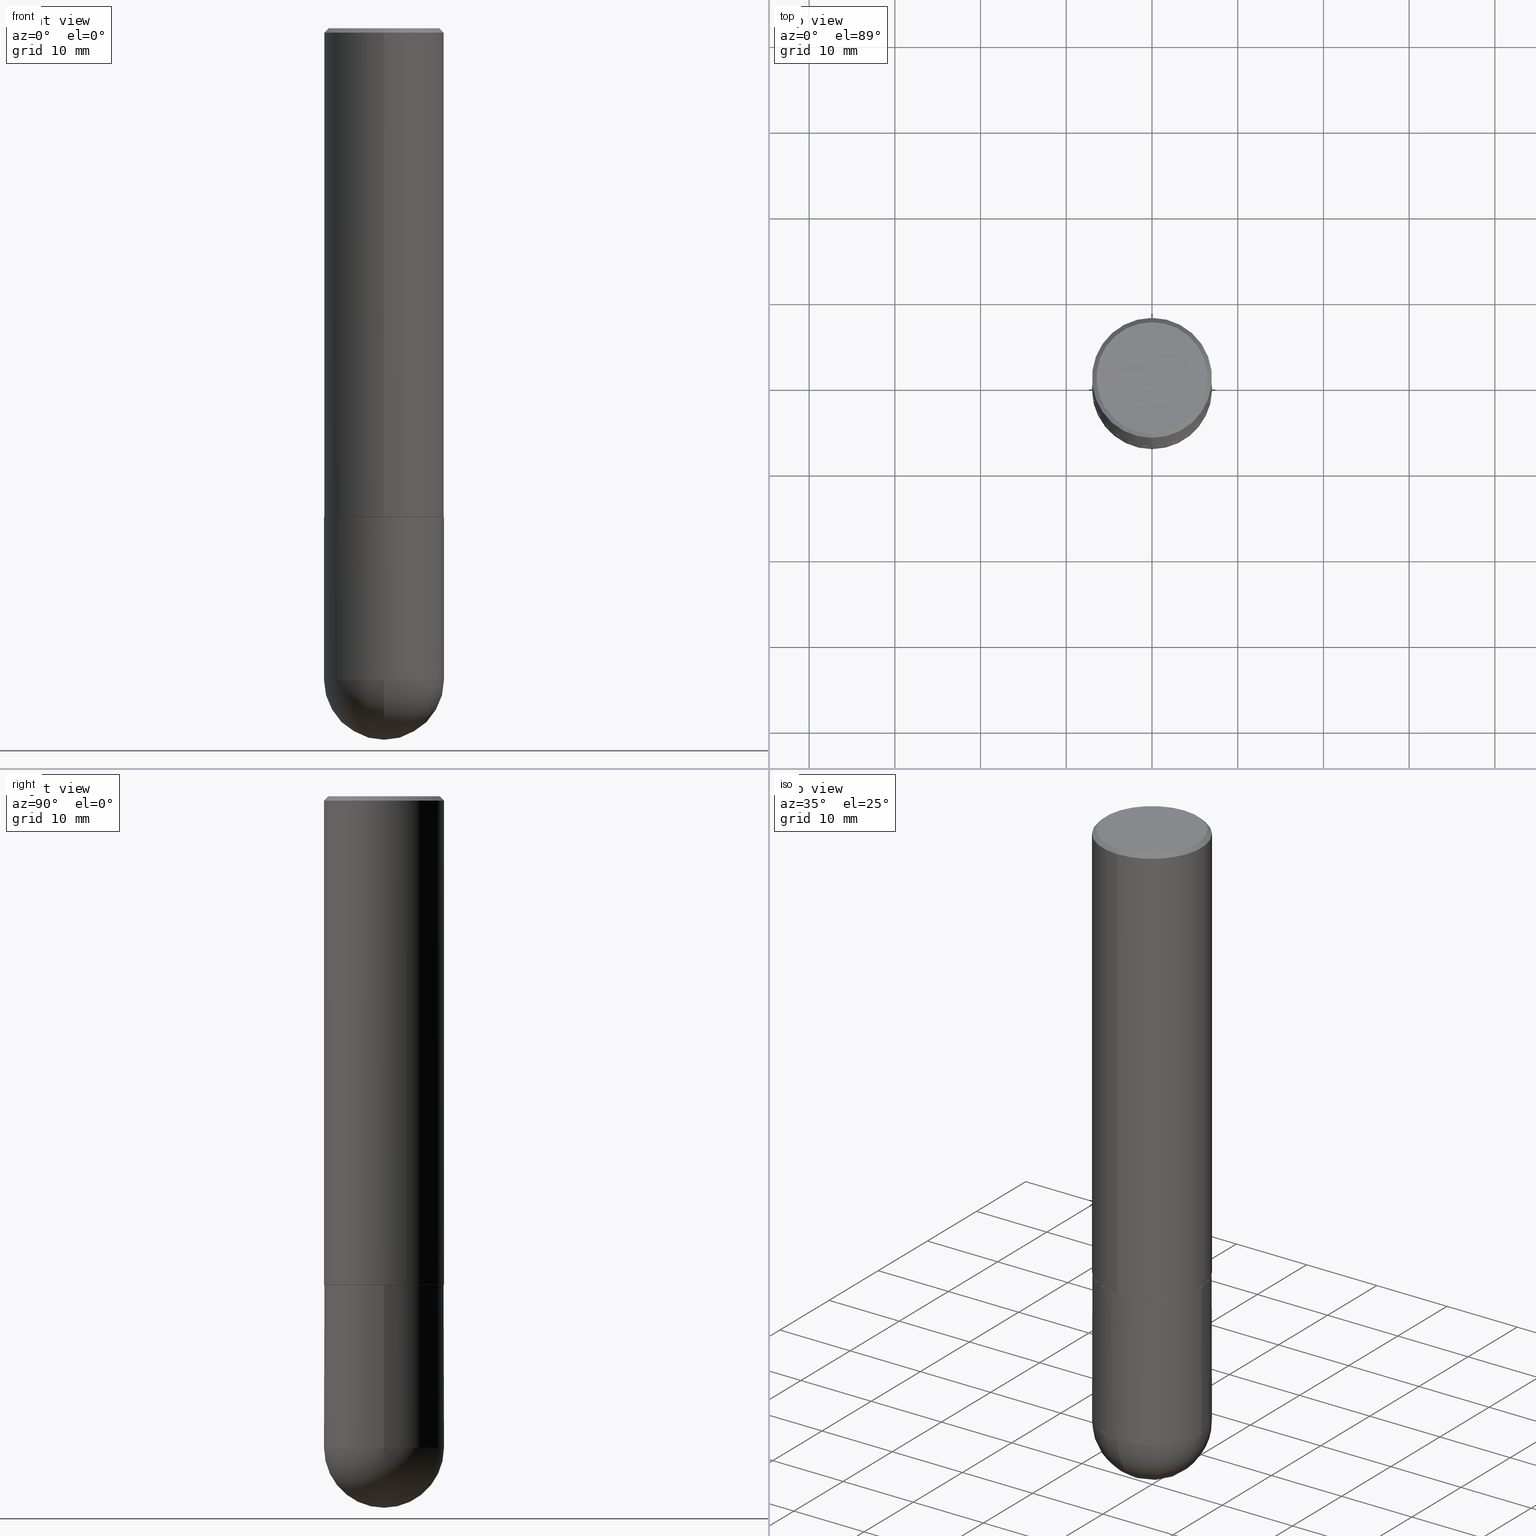
[diagram: canonical four-view strip — front | top / right | iso, engineering-drawing reading convention]
A machine part, canonical four-view strip (front | top / right | iso — engineering-drawing reading convention). The complete STEP part file that produces these views, byte-faithful:
ISO-10303-21;
HEADER;
FILE_DESCRIPTION (( 'STEP AP203' ),
    '1' );
FILE_NAME ('46347.STEP',
    '2024-04-10T11:49:46',
    ( '' ),
    ( '' ),
    'SwSTEP 2.0',
    'SolidWorks 2023',
    '' );
FILE_SCHEMA (( 'CONFIG_CONTROL_DESIGN' ));
ENDSEC;

DATA;
#1 = DIMENSIONAL_EXPONENTS ( 1.000000000000000000, 0.000000000000000000, 0.000000000000000000, 0.000000000000000000, 0.000000000000000000, 0.000000000000000000, 0.000000000000000000 ) ;
#2 = AXIS2_PLACEMENT_3D ( 'NONE', #323, #10, #160 ) ;
#3 = CIRCLE ( 'NONE', #199, 0.2746000000000000107 ) ;
#4 = CALENDAR_DATE ( 2024, 10, 4 ) ;
#5 = LINE ( 'NONE', #6, #239 ) ;
#6 = CARTESIAN_POINT ( 'NONE',  ( 1.924504513970335743E-15, 0.2755999999999999561, -0.02000000000000102737 ) ) ;
#7 = FACE_OUTER_BOUND ( 'NONE', #304, .T. ) ;
#8 = EDGE_CURVE ( 'NONE', #49, #314, #342, .T. ) ;
#9 = DIRECTION ( 'NONE',  ( 6.982962677686265922E-15, 1.000000000000000000, -3.493123410481168498E-15 ) ) ;
#10 = DIRECTION ( 'NONE',  ( -2.444322153688896085E-29, 3.493123410481168498E-15, 1.000000000000000000 ) ) ;
#11 = FACE_OUTER_BOUND ( 'NONE', #186, .T. ) ;
#12 = DIRECTION ( 'NONE',  ( -6.982962677686265922E-15, -1.000000000000000000, 3.500304146453892878E-15 ) ) ;
#13 = VECTOR ( 'NONE', #105, 39.37007874015748143 ) ;
#14 = DIRECTION ( 'NONE',  ( 1.000000000000000000, -6.982962677686265922E-15, 4.883557194083112340E-29 ) ) ;
#15 = DIRECTION ( 'NONE',  ( 5.024295867788662713E-15, 0.7071067811866345032, 0.7071067811864605313 ) ) ;
#16 = DIRECTION ( 'NONE',  ( -2.445468806185136597E-29, 3.491481338843145583E-15, 1.000000000000000000 ) ) ;
#17 = PERSON ( 'UNSPECIFIED', 'UNSPECIFIED', 'UNSPECIFIED', ('UNSPECIFIED'), ('UNSPECIFIED'), ('UNSPECIFIED') ) ;
#18 = ADVANCED_FACE ( 'NONE', ( #317 ), #69, .F. ) ;
#19 = ORGANIZATION ( 'UNSPECIFIED', 'UNSPECIFIED', '' ) ;
#20 = ORIENTED_EDGE ( 'NONE', *, *, #136, .T. ) ;
#21 = APPROVAL ( #309, 'UNSPECIFIED' ) ;
#22 = CARTESIAN_POINT ( 'NONE',  ( 7.317087214986547114E-29, -1.044686131395257581E-14, -2.992100000000000204 ) ) ;
#23 = EDGE_LOOP ( 'NONE', ( #20, #93, #409, #144, #202 ) ) ;
#24 = ORIENTED_EDGE ( 'NONE', *, *, #44, .T. ) ;
#25 = DIRECTION ( 'NONE',  ( 1.000000000000000000, -6.982962677686264344E-15, 0.000000000000000000 ) ) ;
#26 = ORIENTED_EDGE ( 'NONE', *, *, #400, .T. ) ;
#27 = LOCAL_TIME ( 7, 49, 46.00000000000000000, #156 ) ;
#28 = ORIENTED_EDGE ( 'NONE', *, *, #8, .T. ) ;
#29 = COORDINATED_UNIVERSAL_TIME_OFFSET ( 5, 0, .BEHIND. ) ;
#30 = CARTESIAN_POINT ( 'NONE',  ( -0.2756000000000000116, -7.182791513470402485E-15, -2.244100000000000428 ) ) ;
#31 = EDGE_CURVE ( 'NONE', #187, #170, #89, .T. ) ;
#32 = APPROVAL_STATUS ( 'not_yet_approved' ) ;
#33 = CARTESIAN_POINT ( 'NONE',  ( -1.822148268208117593E-15, -0.2555999999999998273, 1.093882144264383997E-15 ) ) ;
#34 = FACE_OUTER_BOUND ( 'NONE', #52, .T. ) ;
#35 = ORIENTED_EDGE ( 'NONE', *, *, #64, .T. ) ;
#36 = CARTESIAN_POINT ( 'NONE',  ( 6.985967437072660867E-29, -1.092104368209262610E-14, -2.992100000000000204 ) ) ;
#37 = DIRECTION ( 'NONE',  ( -2.444322153688896645E-29, 3.493123410481168498E-15, 1.000000000000000000 ) ) ;
#38 = CLOSED_SHELL ( 'NONE', ( #388, #235, #163, #133, #286 ) ) ;
#39 = CARTESIAN_POINT ( 'NONE',  ( 5.485303345093252884E-29, -7.838918245460792099E-15, -2.244100000000000428 ) ) ;
#40 = CARTESIAN_POINT ( 'NONE',  ( 6.985967437072660867E-29, -1.092104368209262610E-14, -2.992100000000000204 ) ) ;
#41 = DIRECTION ( 'NONE',  ( 1.000000000000000000, -6.982962677686267499E-15, 4.876176775795935793E-29 ) ) ;
#42 = AXIS2_PLACEMENT_3D ( 'NONE', #36, #129, #377 ) ;
#43 = LINE ( 'NONE', #169, #274 ) ;
#44 = EDGE_CURVE ( 'NONE', #314, #149, #5, .T. ) ;
#45 = CARTESIAN_POINT ( 'NONE',  ( 7.671722831522178326E-29, -1.186642030618554829E-14, -3.267700000000000049 ) ) ;
#46 = ORIENTED_EDGE ( 'NONE', *, *, #361, .F. ) ;
#47 = DIRECTION ( 'NONE',  ( 1.000000000000000000, 0.000000000000000000, 0.000000000000000000 ) ) ;
#48 = CIRCLE ( 'NONE', #262, 0.2756000000000000671 ) ;
#49 = VERTEX_POINT ( 'NONE', #33 ) ;
#50 = APPROVAL ( #32, 'UNSPECIFIED' ) ;
#51 = CARTESIAN_POINT ( 'NONE',  ( -1.917521551292593719E-15, -0.2746000000000078378, -2.244099999999999095 ) ) ;
#52 = EDGE_LOOP ( 'NONE', ( #162, #277, #102, #183 ) ) ;
#53 = APPLICATION_PROTOCOL_DEFINITION ( 'international standard', 'config_control_design', 1994, #302 ) ;
#54 = COORDINATED_UNIVERSAL_TIME_OFFSET ( 5, 0, .BEHIND. ) ;
#55 = AXIS2_PLACEMENT_3D ( 'NONE', #345, #292, #126 ) ;
#56 = AXIS2_PLACEMENT_3D ( 'NONE', #230, #195, #360 ) ;
#57 = ORIENTED_EDGE ( 'NONE', *, *, #265, .T. ) ;
#58 = DATE_AND_TIME ( #316, #205 ) ;
#59 = DIRECTION ( 'NONE',  ( -2.444322153688896365E-29, 3.493123410481168498E-15, 1.000000000000000000 ) ) ;
#60 = DIRECTION ( 'NONE',  ( -6.982962677686265922E-15, -1.000000000000000000, 3.493123410481168498E-15 ) ) ;
#61 = EDGE_CURVE ( 'NONE', #319, #368, #157, .T. ) ;
#62 = PERSON_AND_ORGANIZATION ( #17, #19 ) ;
#63 = ORIENTED_EDGE ( 'NONE', *, *, #172, .T. ) ;
#64 = EDGE_CURVE ( 'NONE', #407, #368, #299, .T. ) ;
#65 = CARTESIAN_POINT ( 'NONE',  ( 1.958255779754836984E-15, 0.2756000000000001782, -9.627048119286106573E-16 ) ) ;
#66 = AXIS2_PLACEMENT_3D ( 'NONE', #39, #264, #261 ) ;
#67 = PRODUCT_DEFINITION_SHAPE ( 'NONE', 'NONE',  #188 ) ;
#68 = DIRECTION ( 'NONE',  ( -6.982962677686265922E-15, -1.000000000000000000, 3.964946289788476952E-15 ) ) ;
#69 = PLANE ( 'NONE',  #2 ) ;
#70 = DIRECTION ( 'NONE',  ( -6.982962677686265133E-15, -1.000000000000000000, 3.979385278462145862E-15 ) ) ;
#71 = LINE ( 'NONE', #226, #118 ) ;
#72 = CIRCLE ( 'NONE', #303, 0.2756000000000002892 ) ;
#73 = CONICAL_SURFACE ( 'NONE', #365, 0.2756000000000000116, 0.7853981633974466137 ) ;
#74 = SPHERICAL_SURFACE ( 'NONE', #168, 0.2756000000000003447 ) ;
#75 = DIRECTION ( 'NONE',  ( 2.444322153688896085E-29, -3.493123410481168498E-15, -1.000000000000000000 ) ) ;
#76 = DIRECTION ( 'NONE',  ( -2.445468806185136597E-29, 3.491481338843145583E-15, 1.000000000000000000 ) ) ;
#77 = APPROVAL_DATE_TIME ( #298, #50 ) ;
#78 = VECTOR ( 'NONE', #260, 39.37007874015748143 ) ;
#79 = AXIS2_PLACEMENT_3D ( 'NONE', #242, #404, #333 ) ;
#80 = FACE_OUTER_BOUND ( 'NONE', #373, .T. ) ;
#81 = EDGE_CURVE ( 'NONE', #187, #149, #132, .T. ) ;
#82 = CARTESIAN_POINT ( 'NONE',  ( 5.487876547960065873E-29, -7.835233272497903917E-15, -2.244100000000000428 ) ) ;
#83 = MANIFOLD_SOLID_BREP ( 'Body-Move/Copy2[2]', #193 ) ;
#84 = ORIENTED_EDGE ( 'NONE', *, *, #340, .F. ) ;
#85 =( NAMED_UNIT ( * ) PLANE_ANGLE_UNIT ( ) SI_UNIT ( $, .RADIAN. ) );
#86 = CC_DESIGN_PERSON_AND_ORGANIZATION_ASSIGNMENT ( #179, #151, ( #290 ) ) ;
#87 = ORIENTED_EDGE ( 'NONE', *, *, #246, .F. ) ;
#88 = PERSON_AND_ORGANIZATION ( #17, #19 ) ;
#89 = CIRCLE ( 'NONE', #167, 0.2756000000000002892 ) ;
#90 = CC_DESIGN_APPROVAL ( #220, ( #290 ) ) ;
#91 = VERTEX_POINT ( 'NONE', #30 ) ;
#92 = CARTESIAN_POINT ( 'NONE',  ( 0.000000000000000000, 0.000000000000000000, 0.000000000000000000 ) ) ;
#93 = ORIENTED_EDGE ( 'NONE', *, *, #150, .T. ) ;
#94 = ORIENTED_EDGE ( 'NONE', *, *, #122, .T. ) ;
#95 = APPROVAL_DATE_TIME ( #376, #21 ) ;
#96 = CARTESIAN_POINT ( 'NONE',  ( -1.924504513970282100E-15, -0.2756000000000081163, -2.243099999999999206 ) ) ;
#97 = EDGE_CURVE ( 'NONE', #314, #49, #330, .T. ) ;
#98 = CIRCLE ( 'NONE', #379, 0.2756000000000000116 ) ;
#99 = CARTESIAN_POINT ( 'NONE',  ( -4.914060382463135055E-45, 7.022568337235947334E-31, 2.010398005453980136E-16 ) ) ;
#100 = CALENDAR_DATE ( 2024, 10, 4 ) ;
#101 = DIRECTION ( 'NONE',  ( 2.438088387897960049E-29, -3.491481338843145188E-15, -1.000000000000000000 ) ) ;
#102 = ORIENTED_EDGE ( 'NONE', *, *, #246, .T. ) ;
#103 = DIRECTION ( 'NONE',  ( -2.444322153688896365E-29, 3.493123410481168498E-15, 1.000000000000000000 ) ) ;
#104 = CARTESIAN_POINT ( 'NONE',  ( 6.985967437072660867E-29, -1.092104368209262610E-14, -2.992100000000000204 ) ) ;
#105 = DIRECTION ( 'NONE',  ( -2.444322153688896645E-29, 3.493123410481168498E-15, 1.000000000000000000 ) ) ;
#106 = DIRECTION ( 'NONE',  ( -2.445468806185136597E-29, 3.491481338843145583E-15, 1.000000000000000000 ) ) ;
#107 = CARTESIAN_POINT ( 'NONE',  ( 1.954703066076090911E-15, 0.2745999999999921282, -2.244100000000001316 ) ) ;
#108 = ADVANCED_FACE ( 'NONE', ( #7 ), #210, .T. ) ;
#109 =( GEOMETRIC_REPRESENTATION_CONTEXT ( 3 ) GLOBAL_UNCERTAINTY_ASSIGNED_CONTEXT ( ( #138 ) ) GLOBAL_UNIT_ASSIGNED_CONTEXT ( ( #370, #85, #177 ) ) REPRESENTATION_CONTEXT ( 'NONE', 'WORKASPACE' ) );
#110 = CARTESIAN_POINT ( 'NONE',  ( 6.985967437072660867E-29, -1.092104368209262610E-14, -2.992100000000000204 ) ) ;
#111 = DIRECTION ( 'NONE',  ( -2.445468806185136597E-29, 3.491481338843145583E-15, 1.000000000000000000 ) ) ;
#112 = DIRECTION ( 'NONE',  ( 6.982962677686265922E-15, 1.000000000000000000, -3.964946289788475374E-15 ) ) ;
#113 = AXIS2_PLACEMENT_3D ( 'NONE', #297, #296, #12 ) ;
#114 = DIRECTION ( 'NONE',  ( -2.444322153688896365E-29, 3.493123410481168498E-15, 1.000000000000000000 ) ) ;
#115 = ADVANCED_FACE ( 'NONE', ( #34 ), #387, .T. ) ;
#116 = ORIENTED_EDGE ( 'NONE', *, *, #97, .T. ) ;
#117 = VERTEX_POINT ( 'NONE', #224 ) ;
#118 = VECTOR ( 'NONE', #354, 39.37007874015748143 ) ;
#119 = AXIS2_PLACEMENT_3D ( 'NONE', #110, #14, #137 ) ;
#120 = APPROVAL_ROLE ( '' ) ;
#121 = ORIENTED_EDGE ( 'NONE', *, *, #326, .F. ) ;
#122 = EDGE_CURVE ( 'NONE', #170, #187, #72, .T. ) ;
#123 = CALENDAR_DATE ( 2024, 10, 4 ) ;
#124 = EDGE_LOOP ( 'NONE', ( #273, #26 ) ) ;
#125 = PERSON_AND_ORGANIZATION_ROLE ( 'classification_officer' ) ;
#126 = DIRECTION ( 'NONE',  ( 6.982962677686265922E-15, 1.000000000000000000, -3.500304146453892878E-15 ) ) ;
#127 = EDGE_LOOP ( 'NONE', ( #209, #284, #384, #63, #178 ) ) ;
#128 = DIRECTION ( 'NONE',  ( -6.982962677686265922E-15, -1.000000000000000000, 3.493123410481168498E-15 ) ) ;
#129 = DIRECTION ( 'NONE',  ( -1.000000000000000000, 6.982962677686265922E-15, -4.883557194083112340E-29 ) ) ;
#130 = EDGE_LOOP ( 'NONE', ( #307, #406 ) ) ;
#131 = DIRECTION ( 'NONE',  ( 6.982962677686265922E-15, 1.000000000000000000, -3.500304146453892878E-15 ) ) ;
#132 = LINE ( 'NONE', #65, #171 ) ;
#133 = ADVANCED_FACE ( 'NONE', ( #350 ), #251, .F. ) ;
#134 = FACE_OUTER_BOUND ( 'NONE', #127, .T. ) ;
#135 = APPLICATION_CONTEXT ( 'configuration controlled 3d designs of mechanical parts and assemblies' ) ;
#136 = EDGE_CURVE ( 'NONE', #244, #319, #48, .T. ) ;
#137 = DIRECTION ( 'NONE',  ( 6.982962677686265922E-15, 1.000000000000000000, 0.000000000000000000 ) ) ;
#138 = UNCERTAINTY_MEASURE_WITH_UNIT (LENGTH_MEASURE( 1.000000000000000082E-05 ), #370, 'distance_accuracy_value', 'NONE');
#139 = CARTESIAN_POINT ( 'NONE',  ( -1.924504513970336137E-15, -0.2756000000000001782, 9.627048119286106573E-16 ) ) ;
#140 = DIRECTION ( 'NONE',  ( -4.937700262165138110E-15, -0.7071067811866296182, 0.7071067811864654162 ) ) ;
#141 = APPROVAL_PERSON_ORGANIZATION ( #88, #21, #120 ) ;
#142 = ORIENTED_EDGE ( 'NONE', *, *, #81, .T. ) ;
#143 = LINE ( 'NONE', #51, #331 ) ;
#144 = ORIENTED_EDGE ( 'NONE', *, *, #172, .F. ) ;
#145 = FACE_OUTER_BOUND ( 'NONE', #23, .T. ) ;
#146 = ORIENTED_EDGE ( 'NONE', *, *, #64, .F. ) ;
#147 = AXIS2_PLACEMENT_3D ( 'NONE', #381, #101, #217 ) ;
#148 = SECURITY_CLASSIFICATION ( '', '', #279 ) ;
#149 = VERTEX_POINT ( 'NONE', #259 ) ;
#150 = EDGE_CURVE ( 'NONE', #319, #91, #71, .T. ) ;
#151 = PERSON_AND_ORGANIZATION_ROLE ( 'design_supplier' ) ;
#152 = ORIENTED_EDGE ( 'NONE', *, *, #136, .F. ) ;
#153 = DATE_AND_TIME ( #123, #221 ) ;
#154 = CARTESIAN_POINT ( 'NONE',  ( 5.482859022939564646E-29, -7.835425122050310720E-15, -2.243100000000000094 ) ) ;
#155 = ADVANCED_FACE ( 'NONE', ( #243 ), #185, .T. ) ;
#156 = COORDINATED_UNIVERSAL_TIME_OFFSET ( 5, 0, .BEHIND. ) ;
#157 = CIRCLE ( 'NONE', #233, 0.2756000000000000671 ) ;
#158 = DIRECTION ( 'NONE',  ( -6.982962677686265922E-15, -1.000000000000000000, 3.493123410481168498E-15 ) ) ;
#159 = CARTESIAN_POINT ( 'NONE',  ( 0.000000000000000000, 0.000000000000000000, 0.000000000000000000 ) ) ;
#160 = DIRECTION ( 'NONE',  ( -6.982962677686265922E-15, -1.000000000000000000, 3.493123410481168498E-15 ) ) ;
#161 = DIRECTION ( 'NONE',  ( -2.444322153688896365E-29, 3.493123410481168498E-15, 1.000000000000000000 ) ) ;
#162 = ORIENTED_EDGE ( 'NONE', *, *, #81, .F. ) ;
#163 = ADVANCED_FACE ( 'NONE', ( #287 ), #218, .T. ) ;
#164 = CARTESIAN_POINT ( 'NONE',  ( 0.2756000000000000116, -9.759737786468238871E-15, -2.244100000000000428 ) ) ;
#165 = CARTESIAN_POINT ( 'NONE',  ( 1.784845260416608358E-15, 0.2555999999999998273, -7.923224434462870510E-16 ) ) ;
#166 = CARTESIAN_POINT ( 'NONE',  ( 1.854674887193472050E-15, 0.2555999999999998273, -6.918025431735880688E-16 ) ) ;
#167 = AXIS2_PLACEMENT_3D ( 'NONE', #285, #215, #68 ) ;
#168 = AXIS2_PLACEMENT_3D ( 'NONE', #40, #389, #112 ) ;
#169 = CARTESIAN_POINT ( 'NONE',  ( -1.890753248185833713E-15, -0.2756000000000000671, -0.01999999999999909836 ) ) ;
#170 = VERTEX_POINT ( 'NONE', #96 ) ;
#171 = VECTOR ( 'NONE', #37, 39.37007874015748143 ) ;
#172 = EDGE_CURVE ( 'NONE', #288, #275, #214, .T. ) ;
#173 = AXIS2_PLACEMENT_3D ( 'NONE', #22, #16, #25 ) ;
#174 = APPLICATION_PROTOCOL_DEFINITION ( 'international standard', 'config_control_design', 1994, #135 ) ;
#175 = CARTESIAN_POINT ( 'NONE',  ( 5.485303345093252884E-29, -7.838918245460792099E-15, -2.244100000000000428 ) ) ;
#176 = ORIENTED_EDGE ( 'NONE', *, *, #191, .F. ) ;
#177 =( NAMED_UNIT ( * ) SI_UNIT ( $, .STERADIAN. ) SOLID_ANGLE_UNIT ( ) );
#178 = ORIENTED_EDGE ( 'NONE', *, *, #400, .F. ) ;
#179 = PERSON_AND_ORGANIZATION ( #17, #19 ) ;
#180 = AXIS2_PLACEMENT_3D ( 'NONE', #396, #161, #293 ) ;
#181 = EDGE_LOOP ( 'NONE', ( #94, #142, #121, #87 ) ) ;
#182 = PERSON_AND_ORGANIZATION ( #17, #19 ) ;
#183 = ORIENTED_EDGE ( 'NONE', *, *, #278, .F. ) ;
#184 = APPROVAL_DATE_TIME ( #153, #220 ) ;
#185 = CYLINDRICAL_SURFACE ( 'NONE', #254, 0.2756000000000001782 ) ;
#186 = EDGE_LOOP ( 'NONE', ( #84, #35, #371, #152 ) ) ;
#187 = VERTEX_POINT ( 'NONE', #192 ) ;
#188 = PRODUCT_DEFINITION ( 'UNKNOWN', '', #290, #294 ) ;
#189 = DIRECTION ( 'NONE',  ( -2.444322153688896365E-29, 3.493123410481168498E-15, 1.000000000000000000 ) ) ;
#190 = DIRECTION ( 'NONE',  ( -2.445468806185136597E-29, 3.491481338843145583E-15, 1.000000000000000000 ) ) ;
#191 = EDGE_CURVE ( 'NONE', #308, #187, #363, .T. ) ;
#192 = CARTESIAN_POINT ( 'NONE',  ( 1.958255779754864988E-15, 0.2755999999999924621, -2.243100000000001426 ) ) ;
#193 = CLOSED_SHELL ( 'NONE', ( #250, #155, #223, #108, #115, #369, #18, #213 ) ) ;
#194 = AXIS2_PLACEMENT_3D ( 'NONE', #92, #268, #47 ) ;
#195 = DIRECTION ( 'NONE',  ( -2.444322153688896365E-29, 3.493123410481168498E-15, 1.000000000000000000 ) ) ;
#196 = CARTESIAN_POINT ( 'NONE',  ( 7.317087214986547114E-29, -1.044686131395257581E-14, -2.992100000000000204 ) ) ;
#197 = DIRECTION ( 'NONE',  ( 1.000000000000000000, -6.982962677686269866E-15, 0.000000000000000000 ) ) ;
#198 = AXIS2_PLACEMENT_3D ( 'NONE', #104, #253, #412 ) ;
#199 = AXIS2_PLACEMENT_3D ( 'NONE', #353, #395, #70 ) ;
#200 = LINE ( 'NONE', #139, #13 ) ;
#201 = ORIENTED_EDGE ( 'NONE', *, *, #326, .T. ) ;
#202 = ORIENTED_EDGE ( 'NONE', *, *, #372, .T. ) ;
#203 = CC_DESIGN_PERSON_AND_ORGANIZATION_ASSIGNMENT ( #411, #125, ( #148 ) ) ;
#204 = AXIS2_PLACEMENT_3D ( 'NONE', #99, #324, #158 ) ;
#205 = LOCAL_TIME ( 7, 49, 46.00000000000000000, #344 ) ;
#206 = FACE_OUTER_BOUND ( 'NONE', #341, .T. ) ;
#207 = ORIENTED_EDGE ( 'NONE', *, *, #374, .F. ) ;
#208 = ORIENTED_EDGE ( 'NONE', *, *, #191, .T. ) ;
#209 = ORIENTED_EDGE ( 'NONE', *, *, #150, .F. ) ;
#210 = CONICAL_SURFACE ( 'NONE', #55, 0.2756000000000000116, 0.7853981633974466137 ) ;
#211 = PERSON_AND_ORGANIZATION_ROLE ( 'creator' ) ;
#212 = LOCAL_TIME ( 7, 49, 46.00000000000000000, #54 ) ;
#213 = ADVANCED_FACE ( 'NONE', ( #332 ), #301, .F. ) ;
#214 = LINE ( 'NONE', #382, #78 ) ;
#215 = DIRECTION ( 'NONE',  ( -2.444322153688896365E-29, 3.493123410481168498E-15, 1.000000000000000000 ) ) ;
#216 = DATE_TIME_ROLE ( 'classification_date' ) ;
#217 = DIRECTION ( 'NONE',  ( -1.000000000000000000, 6.982962677686265922E-15, -4.876176775795935793E-29 ) ) ;
#218 = SPHERICAL_SURFACE ( 'NONE', #42, 0.2756000000000003447 ) ;
#219 = ORIENTED_EDGE ( 'NONE', *, *, #295, .F. ) ;
#220 = APPROVAL ( #346, 'UNSPECIFIED' ) ;
#221 = LOCAL_TIME ( 7, 49, 46.00000000000000000, #29 ) ;
#222 = DIRECTION ( 'NONE',  ( -2.444322153688896365E-29, 3.493123410481168498E-15, 1.000000000000000000 ) ) ;
#223 = ADVANCED_FACE ( 'NONE', ( #80 ), #73, .T. ) ;
#224 = CARTESIAN_POINT ( 'NONE',  ( -1.917521551292593719E-15, -0.2746000000000078378, -2.244099999999999095 ) ) ;
#225 = FACE_OUTER_BOUND ( 'NONE', #401, .T. ) ;
#226 = CARTESIAN_POINT ( 'NONE',  ( -0.2756000000000000671, 1.958255779754836589E-15, -1.355658510874252287E-29 ) ) ;
#227 = DIRECTION ( 'NONE',  ( 2.444322153688896365E-29, -3.493123410481168498E-15, -1.000000000000000000 ) ) ;
#228 = CIRCLE ( 'NONE', #366, 0.2756000000000000116 ) ;
#229 = CARTESIAN_POINT ( 'NONE',  ( 4.888644307377808495E-31, -6.986246820962358886E-17, -0.02000000000000006287 ) ) ;
#230 = CARTESIAN_POINT ( 'NONE',  ( 5.485303345093252884E-29, -7.838918245460792099E-15, -2.244100000000000428 ) ) ;
#231 = CALENDAR_DATE ( 2024, 10, 4 ) ;
#232 = CARTESIAN_POINT ( 'NONE',  ( 0.000000000000000000, 0.000000000000000000, 0.000000000000000000 ) ) ;
#233 = AXIS2_PLACEMENT_3D ( 'NONE', #252, #190, #348 ) ;
#234 = AXIS2_PLACEMENT_3D ( 'NONE', #196, #111, #291 ) ;
#235 = ADVANCED_FACE ( 'NONE', ( #11 ), #74, .T. ) ;
#236 =( LENGTH_UNIT ( ) NAMED_UNIT ( * ) SI_UNIT ( $, .METRE. ) );
#237 = ORIENTED_EDGE ( 'NONE', *, *, #44, .F. ) ;
#238 = DIRECTION ( 'NONE',  ( -6.982962677686265133E-15, -1.000000000000000000, 3.979385278462145862E-15 ) ) ;
#239 = VECTOR ( 'NONE', #256, 39.37007874015748854 ) ;
#240 = AXIS2_PLACEMENT_3D ( 'NONE', #165, #75, #9 ) ;
#241 = ORIENTED_EDGE ( 'NONE', *, *, #8, .F. ) ;
#242 = CARTESIAN_POINT ( 'NONE',  ( 0.000000000000000000, 0.000000000000000000, 0.000000000000000000 ) ) ;
#243 = FACE_OUTER_BOUND ( 'NONE', #181, .T. ) ;
#244 = VERTEX_POINT ( 'NONE', #358 ) ;
#245 = DATE_AND_TIME ( #100, #27 ) ;
#246 = EDGE_CURVE ( 'NONE', #170, #338, #200, .T. ) ;
#247 = EDGE_LOOP ( 'NONE', ( #116, #28 ) ) ;
#248 = DATE_TIME_ROLE ( 'creation_date' ) ;
#249 = APPROVAL_PERSON_ORGANIZATION ( #182, #220, #318 ) ;
#250 = ADVANCED_FACE ( 'NONE', ( #225 ), #337, .T. ) ;
#251 = PLANE ( 'NONE',  #147 ) ;
#252 = CARTESIAN_POINT ( 'NONE',  ( 7.317087214986547114E-29, -1.044686131395257581E-14, -2.992100000000000204 ) ) ;
#253 = DIRECTION ( 'NONE',  ( -1.000000000000000000, 7.105427357601001070E-15, -4.926315508542082329E-29 ) ) ;
#254 = AXIS2_PLACEMENT_3D ( 'NONE', #280, #59, #386 ) ;
#255 = APPROVAL_PERSON_ORGANIZATION ( #62, #50, #313 ) ;
#256 = DIRECTION ( 'NONE',  ( 4.937700262164538576E-15, 0.7071067811865437980, -0.7071067811865511255 ) ) ;
#257 = PRODUCT ( '46347', '46347', '', ( #306 ) ) ;
#258 = CARTESIAN_POINT ( 'NONE',  ( 1.951150352397289618E-15, 0.2745999999999921282, -2.244100000000001316 ) ) ;
#259 = CARTESIAN_POINT ( 'NONE',  ( 1.924504513970335743E-15, 0.2755999999999999561, -0.02000000000000102737 ) ) ;
#260 = DIRECTION ( 'NONE',  ( -2.445468806185136877E-29, 3.491481338843145188E-15, 1.000000000000000000 ) ) ;
#261 = DIRECTION ( 'NONE',  ( -6.982962677686265133E-15, -1.000000000000000000, 3.979385278462145862E-15 ) ) ;
#262 = AXIS2_PLACEMENT_3D ( 'NONE', #347, #106, #390 ) ;
#263 = CARTESIAN_POINT ( 'NONE',  ( 5.487876547960065873E-29, -7.835233272497903917E-15, -2.244100000000000428 ) ) ;
#264 = DIRECTION ( 'NONE',  ( -2.444322153688896365E-29, 3.493123410481168498E-15, 1.000000000000000000 ) ) ;
#265 = EDGE_CURVE ( 'NONE', #117, #308, #3, .T. ) ;
#266 = CARTESIAN_POINT ( 'NONE',  ( -1.958255779754765592E-15, -0.2756000000000108918, -2.992099999999998872 ) ) ;
#267 = CIRCLE ( 'NONE', #56, 0.2746000000000000107 ) ;
#268 = DIRECTION ( 'NONE',  ( 0.000000000000000000, 0.000000000000000000, 1.000000000000000000 ) ) ;
#269 = ORIENTED_EDGE ( 'NONE', *, *, #278, .T. ) ;
#270 = PERSON_AND_ORGANIZATION ( #17, #19 ) ;
#271 = ORIENTED_EDGE ( 'NONE', *, *, #372, .F. ) ;
#272 = CYLINDRICAL_SURFACE ( 'NONE', #79, 0.2756000000000000671 ) ;
#273 = ORIENTED_EDGE ( 'NONE', *, *, #355, .T. ) ;
#274 = VECTOR ( 'NONE', #367, 39.37007874015748854 ) ;
#275 = VERTEX_POINT ( 'NONE', #164 ) ;
#276 = COORDINATED_UNIVERSAL_TIME_OFFSET ( 5, 0, .BEHIND. ) ;
#277 = ORIENTED_EDGE ( 'NONE', *, *, #31, .T. ) ;
#278 = EDGE_CURVE ( 'NONE', #149, #338, #282, .T. ) ;
#279 = SECURITY_CLASSIFICATION_LEVEL ( 'unclassified' ) ;
#280 = CARTESIAN_POINT ( 'NONE',  ( 0.000000000000000000, 0.000000000000000000, 0.000000000000000000 ) ) ;
#281 = DIRECTION ( 'NONE',  ( -6.982962677686265922E-15, -1.000000000000000000, 3.964946289788476952E-15 ) ) ;
#282 = CIRCLE ( 'NONE', #180, 0.2756000000000000116 ) ;
#283 = CC_DESIGN_DATE_AND_TIME_ASSIGNMENT ( #245, #216, ( #148 ) ) ;
#284 = ORIENTED_EDGE ( 'NONE', *, *, #61, .T. ) ;
#285 = CARTESIAN_POINT ( 'NONE',  ( 5.482859022939564646E-29, -7.835425122050310720E-15, -2.243100000000000094 ) ) ;
#286 = ADVANCED_FACE ( 'NONE', ( #134 ), #329, .T. ) ;
#287 = FACE_OUTER_BOUND ( 'NONE', #375, .T. ) ;
#288 = VERTEX_POINT ( 'NONE', #391 ) ;
#289 = AXIS2_PLACEMENT_3D ( 'NONE', #159, #103, #60 ) ;
#290 = PRODUCT_DEFINITION_FORMATION_WITH_SPECIFIED_SOURCE ( 'ANY', '', #257, .NOT_KNOWN. ) ;
#291 = DIRECTION ( 'NONE',  ( 1.000000000000000000, -6.982962677686264344E-15, 0.000000000000000000 ) ) ;
#292 = DIRECTION ( 'NONE',  ( 2.444322153688896365E-29, -3.493123410481168498E-15, -1.000000000000000000 ) ) ;
#293 = DIRECTION ( 'NONE',  ( -6.982962677686265922E-15, -1.000000000000000000, 3.500304146453892878E-15 ) ) ;
#294 = DESIGN_CONTEXT ( 'detailed design', #302, 'design' ) ;
#295 = EDGE_CURVE ( 'NONE', #368, #288, #357, .T. ) ;
#296 = DIRECTION ( 'NONE',  ( -2.444322153688896365E-29, 3.493123410481168498E-15, 1.000000000000000000 ) ) ;
#297 = CARTESIAN_POINT ( 'NONE',  ( 4.888644307377808495E-31, -6.986246820962358886E-17, -0.02000000000000006287 ) ) ;
#298 = DATE_AND_TIME ( #231, #325 ) ;
#299 = CIRCLE ( 'NONE', #198, 0.2756000000000003447 ) ;
#300 = AXIS2_PLACEMENT_3D ( 'NONE', #232, #362, #41 ) ;
#301 = PLANE ( 'NONE',  #240 ) ;
#302 = APPLICATION_CONTEXT ( 'configuration controlled 3d designs of mechanical parts and assemblies' ) ;
#303 = AXIS2_PLACEMENT_3D ( 'NONE', #154, #222, #281 ) ;
#304 = EDGE_LOOP ( 'NONE', ( #46, #403, #24, #269 ) ) ;
#305 = AXIS2_PLACEMENT_3D ( 'NONE', #175, #114, #238 ) ;
#306 = MECHANICAL_CONTEXT ( 'NONE', #135, 'mechanical' ) ;
#307 = ORIENTED_EDGE ( 'NONE', *, *, #265, .F. ) ;
#308 = VERTEX_POINT ( 'NONE', #107 ) ;
#309 = APPROVAL_STATUS ( 'not_yet_approved' ) ;
#310 = CC_DESIGN_PERSON_AND_ORGANIZATION_ASSIGNMENT ( #408, #211, ( #188 ) ) ;
#311 = ORIENTED_EDGE ( 'NONE', *, *, #315, .T. ) ;
#312 = CC_DESIGN_APPROVAL ( #50, ( #148 ) ) ;
#313 = APPROVAL_ROLE ( '' ) ;
#314 = VERTEX_POINT ( 'NONE', #166 ) ;
#315 = EDGE_CURVE ( 'NONE', #308, #117, #267, .T. ) ;
#316 = CALENDAR_DATE ( 2024, 10, 4 ) ;
#317 = FACE_OUTER_BOUND ( 'NONE', #130, .T. ) ;
#318 = APPROVAL_ROLE ( '' ) ;
#319 = VERTEX_POINT ( 'NONE', #327 ) ;
#320 = CC_DESIGN_DATE_AND_TIME_ASSIGNMENT ( #58, #248, ( #188 ) ) ;
#321 = CC_DESIGN_SECURITY_CLASSIFICATION ( #148, ( #290 ) ) ;
#322 = CARTESIAN_POINT ( 'NONE',  ( -4.914060382463135055E-45, 7.022568337235947334E-31, 2.010398005453980136E-16 ) ) ;
#323 = CARTESIAN_POINT ( 'NONE',  ( 5.485303345093252884E-29, -7.838918245460792099E-15, -2.244100000000000428 ) ) ;
#324 = DIRECTION ( 'NONE',  ( -2.444322153688896365E-29, 3.493123410481168498E-15, 1.000000000000000000 ) ) ;
#325 = LOCAL_TIME ( 7, 49, 46.00000000000000000, #276 ) ;
#326 = EDGE_CURVE ( 'NONE', #338, #149, #385, .T. ) ;
#327 = CARTESIAN_POINT ( 'NONE',  ( -0.2756000000000000671, -7.182791513470404062E-15, -2.992100000000000204 ) ) ;
#328 = CARTESIAN_POINT ( 'NONE',  ( -1.890753248185833713E-15, -0.2756000000000000671, -0.01999999999999909836 ) ) ;
#329 = CYLINDRICAL_SURFACE ( 'NONE', #300, 0.2756000000000000671 ) ;
#330 = CIRCLE ( 'NONE', #405, 0.2555999999999998273 ) ;
#331 = VECTOR ( 'NONE', #140, 39.37007874015748143 ) ;
#332 = FACE_OUTER_BOUND ( 'NONE', #247, .T. ) ;
#333 = DIRECTION ( 'NONE',  ( 1.000000000000000000, -6.982962677686267499E-15, 4.876176775795935793E-29 ) ) ;
#334 = ORIENTED_EDGE ( 'NONE', *, *, #340, .T. ) ;
#335 = DIRECTION ( 'NONE',  ( -2.445468806185136597E-29, 3.491481338843145583E-15, 1.000000000000000000 ) ) ;
#336 = ORIENTED_EDGE ( 'NONE', *, *, #31, .F. ) ;
#337 = CONICAL_SURFACE ( 'NONE', #66, 0.2746000000000000107, 0.7853981633975678500 ) ;
#338 = VERTEX_POINT ( 'NONE', #328 ) ;
#339 = PERSON_AND_ORGANIZATION ( #17, #19 ) ;
#340 = EDGE_CURVE ( 'NONE', #407, #244, #398, .T. ) ;
#341 = EDGE_LOOP ( 'NONE', ( #176, #311, #351, #336 ) ) ;
#342 = CIRCLE ( 'NONE', #204, 0.2555999999999998273 ) ;
#343 = CONICAL_SURFACE ( 'NONE', #305, 0.2746000000000000107, 0.7853981633975678500 ) ;
#344 = COORDINATED_UNIVERSAL_TIME_OFFSET ( 5, 0, .BEHIND. ) ;
#345 = CARTESIAN_POINT ( 'NONE',  ( 4.888644307377808495E-31, -6.986246820962358886E-17, -0.02000000000000006287 ) ) ;
#346 = APPROVAL_STATUS ( 'not_yet_approved' ) ;
#347 = CARTESIAN_POINT ( 'NONE',  ( 7.317087214986547114E-29, -1.044686131395257581E-14, -2.992100000000000204 ) ) ;
#348 = DIRECTION ( 'NONE',  ( 1.000000000000000000, -6.982962677686264344E-15, 0.000000000000000000 ) ) ;
#349 = CIRCLE ( 'NONE', #173, 0.2756000000000000671 ) ;
#350 = FACE_OUTER_BOUND ( 'NONE', #124, .T. ) ;
#351 = ORIENTED_EDGE ( 'NONE', *, *, #374, .T. ) ;
#352 = ADVANCED_BREP_SHAPE_REPRESENTATION ( '46347', ( #356, #83, #194 ), #109 ) ;
#353 = CARTESIAN_POINT ( 'NONE',  ( 5.485303345093252884E-29, -7.838918245460792099E-15, -2.244100000000000428 ) ) ;
#354 = DIRECTION ( 'NONE',  ( -2.445468806185136877E-29, 3.491481338843145188E-15, 1.000000000000000000 ) ) ;
#355 = EDGE_CURVE ( 'NONE', #275, #91, #98, .T. ) ;
#356 = MANIFOLD_SOLID_BREP ( 'Body-Move/Copy2[1]', #38 ) ;
#357 = CIRCLE ( 'NONE', #234, 0.2756000000000000671 ) ;
#358 = CARTESIAN_POINT ( 'NONE',  ( 1.924504513970407924E-15, 0.2755999999999895200, -2.992100000000001092 ) ) ;
#359 = CC_DESIGN_PERSON_AND_ORGANIZATION_ASSIGNMENT ( #270, #402, ( #257 ) ) ;
#360 = DIRECTION ( 'NONE',  ( -6.982962677686265133E-15, -1.000000000000000000, 3.979385278462145862E-15 ) ) ;
#361 = EDGE_CURVE ( 'NONE', #49, #338, #43, .T. ) ;
#362 = DIRECTION ( 'NONE',  ( -2.445468806185136597E-29, 3.491481338843145583E-15, 1.000000000000000000 ) ) ;
#363 = LINE ( 'NONE', #258, #364 ) ;
#364 = VECTOR ( 'NONE', #15, 39.37007874015748143 ) ;
#365 = AXIS2_PLACEMENT_3D ( 'NONE', #229, #227, #131 ) ;
#366 = AXIS2_PLACEMENT_3D ( 'NONE', #82, #335, #397 ) ;
#367 = DIRECTION ( 'NONE',  ( -4.851104656540954809E-15, -0.7071067811865486830, -0.7071067811865462405 ) ) ;
#368 = VERTEX_POINT ( 'NONE', #266 ) ;
#369 = ADVANCED_FACE ( 'NONE', ( #206 ), #343, .T. ) ;
#370 =( CONVERSION_BASED_UNIT ( 'INCH', #399 ) LENGTH_UNIT ( ) NAMED_UNIT ( #1 ) );
#371 = ORIENTED_EDGE ( 'NONE', *, *, #61, .F. ) ;
#372 = EDGE_CURVE ( 'NONE', #288, #244, #349, .T. ) ;
#373 = EDGE_LOOP ( 'NONE', ( #241, #378, #201, #237 ) ) ;
#374 = EDGE_CURVE ( 'NONE', #117, #170, #143, .T. ) ;
#375 = EDGE_LOOP ( 'NONE', ( #146, #334, #271, #219 ) ) ;
#376 = DATE_AND_TIME ( #4, #212 ) ;
#377 = DIRECTION ( 'NONE',  ( 6.982962677686265922E-15, 1.000000000000000000, -3.964946289788475374E-15 ) ) ;
#378 = ORIENTED_EDGE ( 'NONE', *, *, #361, .T. ) ;
#379 = AXIS2_PLACEMENT_3D ( 'NONE', #263, #76, #197 ) ;
#380 = PERSON_AND_ORGANIZATION_ROLE ( 'creator' ) ;
#381 = CARTESIAN_POINT ( 'NONE',  ( 1.924504513970389780E-15, 0.2755999999999921846, -2.244100000000001316 ) ) ;
#382 = CARTESIAN_POINT ( 'NONE',  ( 0.2756000000000000671, -1.924504513970335743E-15, 1.343874319409360268E-29 ) ) ;
#383 = ORIENTED_EDGE ( 'NONE', *, *, #122, .F. ) ;
#384 = ORIENTED_EDGE ( 'NONE', *, *, #295, .T. ) ;
#385 = CIRCLE ( 'NONE', #113, 0.2756000000000000116 ) ;
#386 = DIRECTION ( 'NONE',  ( -6.982962677686265922E-15, -1.000000000000000000, 3.493123410481168498E-15 ) ) ;
#387 = CYLINDRICAL_SURFACE ( 'NONE', #289, 0.2756000000000001782 ) ;
#388 = ADVANCED_FACE ( 'NONE', ( #145 ), #272, .T. ) ;
#389 = DIRECTION ( 'NONE',  ( -1.000000000000000000, 6.982962677686265922E-15, -4.883557194083112340E-29 ) ) ;
#390 = DIRECTION ( 'NONE',  ( 1.000000000000000000, -6.982962677686264344E-15, 0.000000000000000000 ) ) ;
#391 = CARTESIAN_POINT ( 'NONE',  ( 0.2756000000000000671, -1.106555180719557718E-14, -2.992100000000000204 ) ) ;
#392 = SHAPE_DEFINITION_REPRESENTATION ( #67, #352 ) ;
#393 = CC_DESIGN_APPROVAL ( #21, ( #188 ) ) ;
#394 = PRODUCT_RELATED_PRODUCT_CATEGORY ( 'detail', '', ( #257 ) ) ;
#395 = DIRECTION ( 'NONE',  ( -2.444322153688896365E-29, 3.493123410481168498E-15, 1.000000000000000000 ) ) ;
#396 = CARTESIAN_POINT ( 'NONE',  ( 4.888644307377808495E-31, -6.986246820962358886E-17, -0.02000000000000006287 ) ) ;
#397 = DIRECTION ( 'NONE',  ( 1.000000000000000000, -6.982962677686269866E-15, 0.000000000000000000 ) ) ;
#398 = CIRCLE ( 'NONE', #119, 0.2756000000000003447 ) ;
#399 = LENGTH_MEASURE_WITH_UNIT ( LENGTH_MEASURE( 0.02539999999999999897 ), #236 );
#400 = EDGE_CURVE ( 'NONE', #91, #275, #228, .T. ) ;
#401 = EDGE_LOOP ( 'NONE', ( #57, #208, #383, #207 ) ) ;
#402 = PERSON_AND_ORGANIZATION_ROLE ( 'design_owner' ) ;
#403 = ORIENTED_EDGE ( 'NONE', *, *, #97, .F. ) ;
#404 = DIRECTION ( 'NONE',  ( -2.445468806185136597E-29, 3.491481338843145583E-15, 1.000000000000000000 ) ) ;
#405 = AXIS2_PLACEMENT_3D ( 'NONE', #322, #189, #128 ) ;
#406 = ORIENTED_EDGE ( 'NONE', *, *, #315, .F. ) ;
#407 = VERTEX_POINT ( 'NONE', #45 ) ;
#408 = PERSON_AND_ORGANIZATION ( #17, #19 ) ;
#409 = ORIENTED_EDGE ( 'NONE', *, *, #355, .F. ) ;
#410 = CC_DESIGN_PERSON_AND_ORGANIZATION_ASSIGNMENT ( #339, #380, ( #290 ) ) ;
#411 = PERSON_AND_ORGANIZATION ( #17, #19 ) ;
#412 = DIRECTION ( 'NONE',  ( -7.105427357601001859E-15, -1.000000000000000000, 0.000000000000000000 ) ) ;
ENDSEC;
END-ISO-10303-21;
